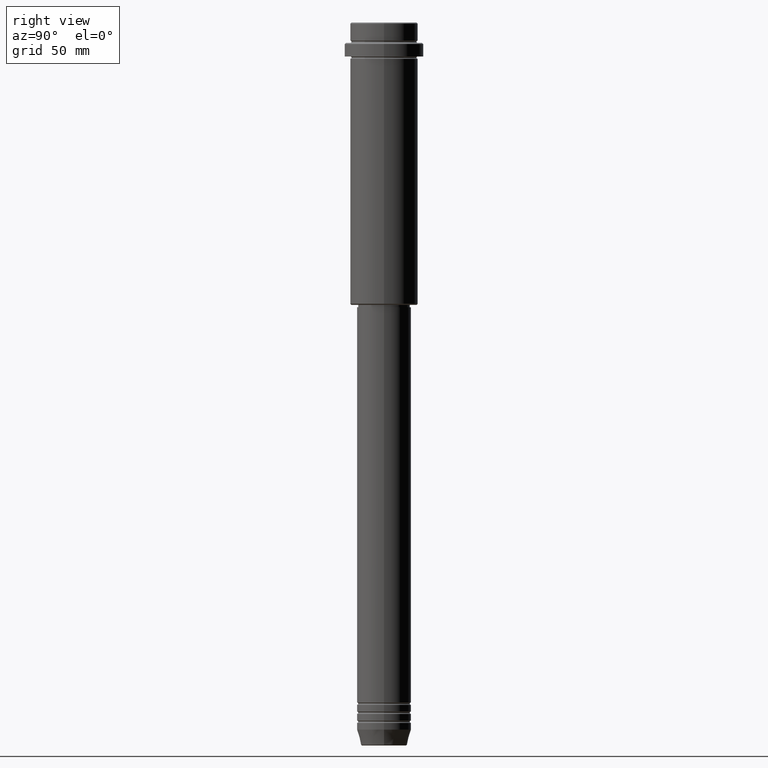
[diagram: clean part render]
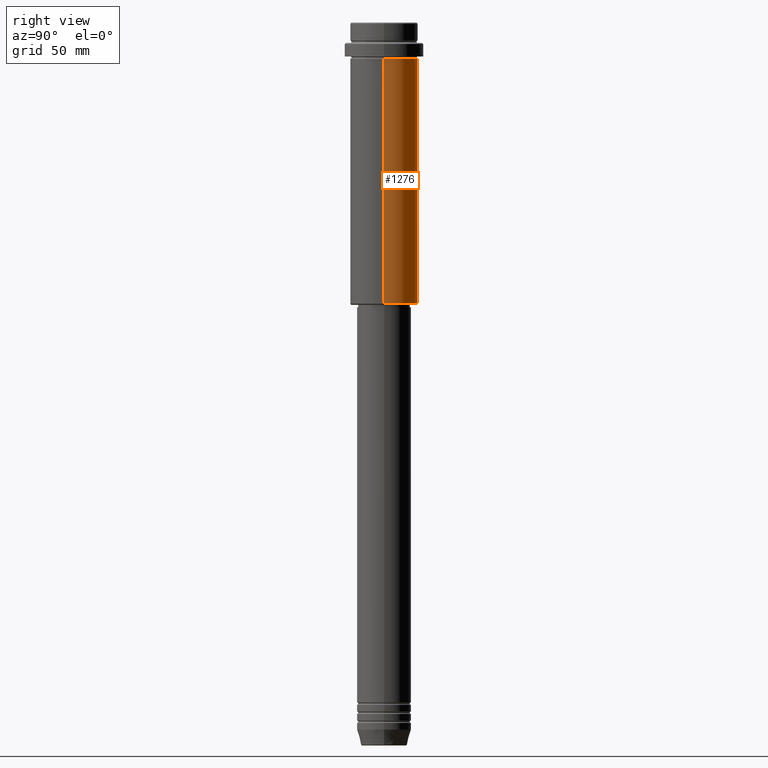
[diagram: same view with one face highlighted and labeled with its STEP entity id]
A machine part, right view. The second image highlights one B-rep face of the part: STEP entity #1276.
In plain terms, the highlighted cylindrical surface (edge-blend (fillet) strip) has radius 15 mm, axis along (-0, -0, 1).
Its self-contained STEP definition (entity closure, byte-faithful):
#18 = CIRCLE ( 'NONE', #1188, 15.00000000000000178 ) ;
#27 = DIRECTION ( 'NONE',  ( -1.000000000000000000, 0.000000000000000000, 0.000000000000000000 ) ) ;
#28 = EDGE_LOOP ( 'NONE', ( #202, #312, #1392, #1134 ) ) ;
#78 = DIRECTION ( 'NONE',  ( -0.000000000000000000, -0.000000000000000000, 1.000000000000000000 ) ) ;
#87 = VECTOR ( 'NONE', #232, 1000.000000000000000 ) ;
#101 = VERTEX_POINT ( 'NONE', #461 ) ;
#138 = VERTEX_POINT ( 'NONE', #1329 ) ;
#156 = AXIS2_PLACEMENT_3D ( 'NONE', #808, #281, #27 ) ;
#196 = FACE_OUTER_BOUND ( 'NONE', #28, .T. ) ;
#202 = ORIENTED_EDGE ( 'NONE', *, *, #1169, .T. ) ;
#228 = CARTESIAN_POINT ( 'NONE',  ( -15.00000000000000355, 1.836970198721029983E-15, -16.00000000000000000 ) ) ;
#232 = DIRECTION ( 'NONE',  ( -0.000000000000000000, -0.000000000000000000, 1.000000000000000000 ) ) ;
#281 = DIRECTION ( 'NONE',  ( -0.000000000000000000, -0.000000000000000000, 1.000000000000000000 ) ) ;
#312 = ORIENTED_EDGE ( 'NONE', *, *, #983, .T. ) ;
#386 = EDGE_CURVE ( 'NONE', #138, #931, #851, .T. ) ;
#461 = CARTESIAN_POINT ( 'NONE',  ( -15.00000000000000000, 1.836970198721029589E-15, -124.4999999999998863 ) ) ;
#476 = EDGE_CURVE ( 'NONE', #931, #1412, #18, .T. ) ;
#507 = CARTESIAN_POINT ( 'NONE',  ( 15.00000000000000178, 0.000000000000000000, -16.00000000000000000 ) ) ;
#518 = DIRECTION ( 'NONE',  ( -0.000000000000000000, -0.000000000000000000, 1.000000000000000000 ) ) ;
#634 = DIRECTION ( 'NONE',  ( 1.000000000000000000, 0.000000000000000000, 0.000000000000000000 ) ) ;
#724 = CARTESIAN_POINT ( 'NONE',  ( 0.000000000000000000, 0.000000000000000000, 0.000000000000000000 ) ) ;
#808 = CARTESIAN_POINT ( 'NONE',  ( 0.000000000000000000, 0.000000000000000000, -124.4999999999998863 ) ) ;
#851 = LINE ( 'NONE', #1050, #1249 ) ;
#882 = CARTESIAN_POINT ( 'NONE',  ( -15.00000000000000000, 1.836970198721029589E-15, 0.000000000000000000 ) ) ;
#931 = VERTEX_POINT ( 'NONE', #507 ) ;
#935 = CYLINDRICAL_SURFACE ( 'NONE', #1316, 15.00000000000000000 ) ;
#942 = CARTESIAN_POINT ( 'NONE',  ( 0.000000000000000000, 0.000000000000000000, -16.00000000000000000 ) ) ;
#954 = CIRCLE ( 'NONE', #156, 15.00000000000000000 ) ;
#981 = LINE ( 'NONE', #882, #87 ) ;
#983 = EDGE_CURVE ( 'NONE', #101, #1412, #981, .T. ) ;
#1050 = CARTESIAN_POINT ( 'NONE',  ( 15.00000000000000000, 0.000000000000000000, 0.000000000000000000 ) ) ;
#1072 = DIRECTION ( 'NONE',  ( -0.000000000000000000, -0.000000000000000000, 1.000000000000000000 ) ) ;
#1134 = ORIENTED_EDGE ( 'NONE', *, *, #386, .F. ) ;
#1169 = EDGE_CURVE ( 'NONE', #138, #101, #954, .T. ) ;
#1175 = DIRECTION ( 'NONE',  ( 1.000000000000000000, 0.000000000000000000, 0.000000000000000000 ) ) ;
#1188 = AXIS2_PLACEMENT_3D ( 'NONE', #942, #1072, #634 ) ;
#1249 = VECTOR ( 'NONE', #78, 1000.000000000000000 ) ;
#1276 = ADVANCED_FACE ( 'NONE', ( #196 ), #935, .T. ) ;
#1316 = AXIS2_PLACEMENT_3D ( 'NONE', #724, #518, #1175 ) ;
#1329 = CARTESIAN_POINT ( 'NONE',  ( 15.00000000000000000, 0.000000000000000000, -124.4999999999998863 ) ) ;
#1392 = ORIENTED_EDGE ( 'NONE', *, *, #476, .F. ) ;
#1412 = VERTEX_POINT ( 'NONE', #228 ) ;